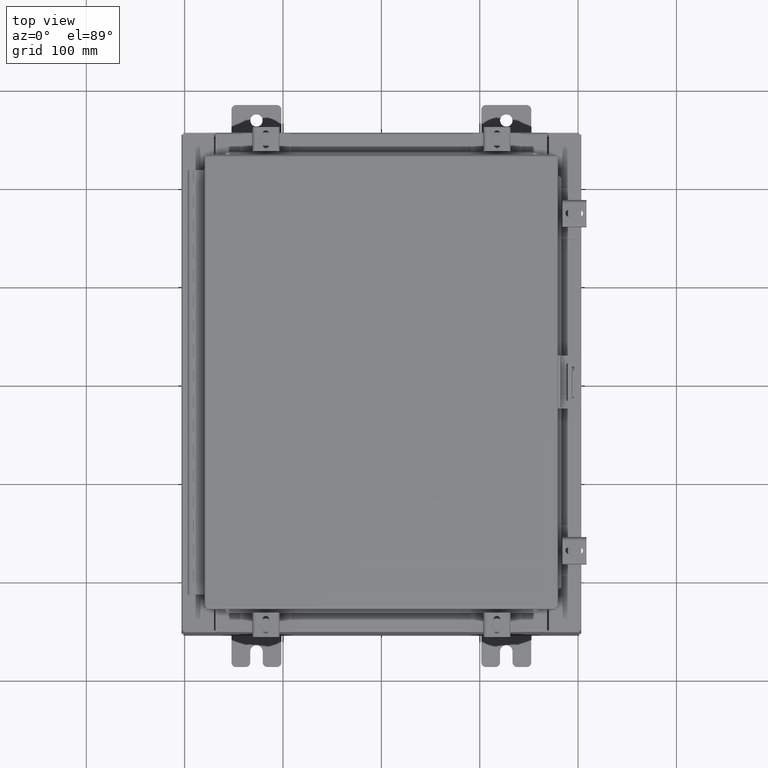
[diagram: clean part render]
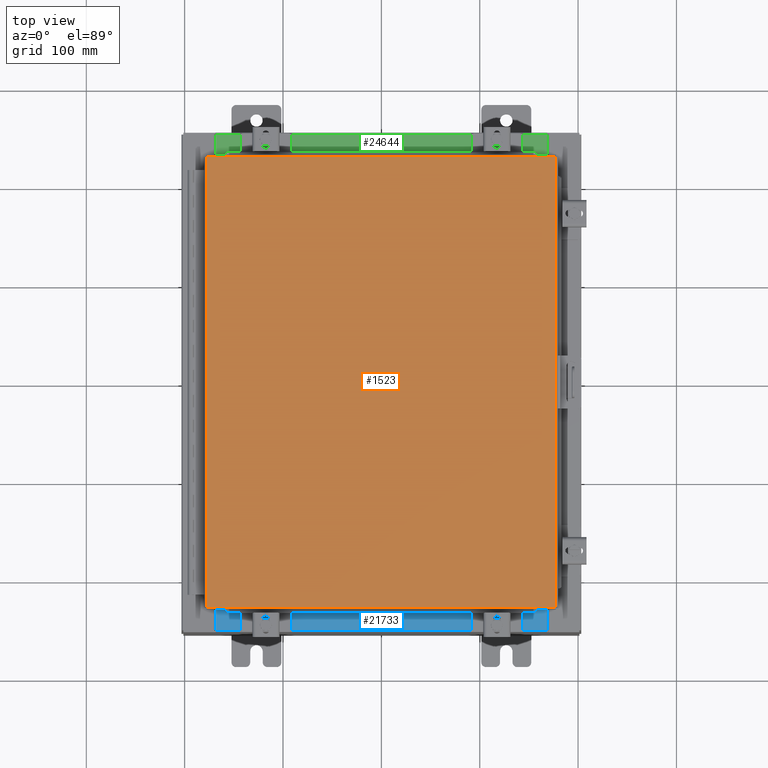
[diagram: same view with three faces highlighted in distinct colors, each labeled with its STEP entity id]
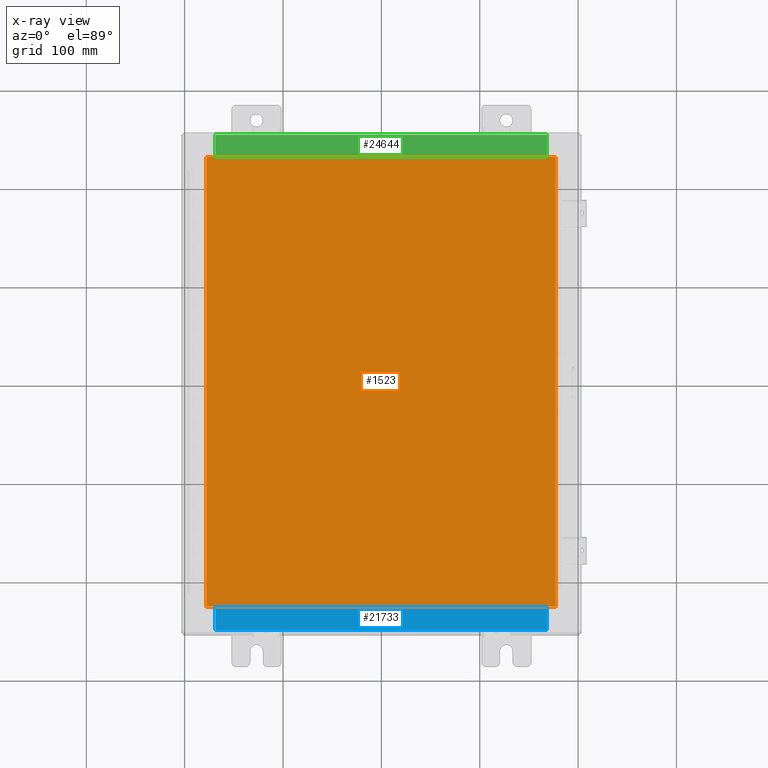
[diagram: x-ray of the same camera — body ghosted, the three highlighted faces saturated]
A machine part, top view with three faces highlighted in distinct colors.
The next image is the same camera in x-ray (body ghosted, the three faces saturated) — at least one of them is partly hidden behind the body in this view.
Their STEP definitions:

[orange] entity #1523 — the highlighted planar face has unit normal (0, 0, -1).
#244 = DIRECTION ( 'NONE',  ( -1.000000000000000000, -0.0000000000000000000, -0.0000000000000000000 ) ) ;
#265 = EDGE_CURVE ( 'NONE', #3115, #21373, #16398, .T. ) ;
#1492 = CARTESIAN_POINT ( 'NONE',  ( -6.990299999999997700, 9.006300000000001300, -2.048885995248197400E-016 ) ) ;
#1523 = ADVANCED_FACE ( 'NONE', ( #20638 ), #20067, .F. ) ;
#3115 = VERTEX_POINT ( 'NONE', #12463 ) ;
#3782 = CARTESIAN_POINT ( 'NONE',  ( 6.990300000000002200, 9.006300000000001300, -7.512581982576723400E-016 ) ) ;
#5084 = EDGE_LOOP ( 'NONE', ( #6978, #21988, #6036, #12754 ) ) ;
#6036 = ORIENTED_EDGE ( 'NONE', *, *, #17402, .T. ) ;
#6474 = DIRECTION ( 'NONE',  ( -1.000000000000000000, 0.0000000000000000000, -0.0000000000000000000 ) ) ;
#6978 = ORIENTED_EDGE ( 'NONE', *, *, #13019, .T. ) ;
#7796 = DIRECTION ( 'NONE',  ( 0.0000000000000000000, 1.000000000000000000, 0.0000000000000000000 ) ) ;
#12382 = AXIS2_PLACEMENT_3D ( 'NONE', #28736, #21407, #6474 ) ;
#12463 = CARTESIAN_POINT ( 'NONE',  ( 6.990300000000002200, -9.006299999999997800, -2.048885995248197400E-016 ) ) ;
#12600 = LINE ( 'NONE', #1492, #24002 ) ;
#12754 = ORIENTED_EDGE ( 'NONE', *, *, #15112, .T. ) ;
#13019 = EDGE_CURVE ( 'NONE', #18039, #3115, #15831, .T. ) ;
#14768 = DIRECTION ( 'NONE',  ( 1.000000000000000000, -0.0000000000000000000, -0.0000000000000000000 ) ) ;
#15112 = EDGE_CURVE ( 'NONE', #22029, #18039, #12600, .T. ) ;
#15831 = LINE ( 'NONE', #28465, #28004 ) ;
#16398 = LINE ( 'NONE', #27307, #27845 ) ;
#17221 = CARTESIAN_POINT ( 'NONE',  ( -6.990299999999997700, 9.006300000000001300, -2.048885995248197400E-016 ) ) ;
#17313 = VECTOR ( 'NONE', #244, 39.37007874015748100 ) ;
#17402 = EDGE_CURVE ( 'NONE', #21373, #22029, #29472, .T. ) ;
#18039 = VERTEX_POINT ( 'NONE', #22875 ) ;
#20067 = PLANE ( 'NONE',  #12382 ) ;
#20638 = FACE_OUTER_BOUND ( 'NONE', #5084, .T. ) ;
#21373 = VERTEX_POINT ( 'NONE', #3782 ) ;
#21407 = DIRECTION ( 'NONE',  ( 0.0000000000000000000, 0.0000000000000000000, -1.000000000000000000 ) ) ;
#21988 = ORIENTED_EDGE ( 'NONE', *, *, #265, .T. ) ;
#22029 = VERTEX_POINT ( 'NONE', #17221 ) ;
#22875 = CARTESIAN_POINT ( 'NONE',  ( -6.990299999999997700, -9.006299999999997800, -2.048885995248197400E-016 ) ) ;
#24002 = VECTOR ( 'NONE', #24150, 39.37007874015748100 ) ;
#24150 = DIRECTION ( 'NONE',  ( 0.0000000000000000000, -1.000000000000000000, 0.0000000000000000000 ) ) ;
#27307 = CARTESIAN_POINT ( 'NONE',  ( 6.990300000000002200, -9.006299999999997800, -2.048885995248197400E-016 ) ) ;
#27594 = CARTESIAN_POINT ( 'NONE',  ( 6.990300000000002200, 9.006300000000001300, -7.512581982576723400E-016 ) ) ;
#27845 = VECTOR ( 'NONE', #7796, 39.37007874015748100 ) ;
#28004 = VECTOR ( 'NONE', #14768, 39.37007874015748100 ) ;
#28465 = CARTESIAN_POINT ( 'NONE',  ( -6.990299999999997700, -9.006299999999997800, -2.048885995248197400E-016 ) ) ;
#28736 = CARTESIAN_POINT ( 'NONE',  ( 0.0000000000000000000, 0.0000000000000000000, 0.0000000000000000000 ) ) ;
#29472 = LINE ( 'NONE', #27594, #17313 ) ;

[blue] entity #21733 — the highlighted planar face has unit normal (-0, -0, 1).
#284 = DIRECTION ( 'NONE',  ( 0.0000000000000000000, 3.566381192773190000E-015, 1.000000000000000000 ) ) ;
#736 = ORIENTED_EDGE ( 'NONE', *, *, #12974, .F. ) ;
#1448 = VERTEX_POINT ( 'NONE', #3191 ) ;
#1824 = DIRECTION ( 'NONE',  ( -1.000000000000000000, 0.0000000000000000000, 0.0000000000000000000 ) ) ;
#2051 = VECTOR ( 'NONE', #15396, 39.37007874015748100 ) ;
#2507 = VERTEX_POINT ( 'NONE', #8444 ) ;
#3174 = VERTEX_POINT ( 'NONE', #20112 ) ;
#3191 = CARTESIAN_POINT ( 'NONE',  ( -6.637200000000000000, -0.08770000000000026400, 3.999999999999999600 ) ) ;
#3535 = VECTOR ( 'NONE', #11460, 39.37007874015748100 ) ;
#4501 = LINE ( 'NONE', #26081, #22657 ) ;
#6234 = EDGE_CURVE ( 'NONE', #15433, #3174, #27027, .T. ) ;
#6460 = ORIENTED_EDGE ( 'NONE', *, *, #29017, .F. ) ;
#6673 = EDGE_CURVE ( 'NONE', #15433, #1448, #28420, .T. ) ;
#8104 = LINE ( 'NONE', #8199, #2051 ) ;
#8199 = CARTESIAN_POINT ( 'NONE',  ( 6.637200000000000900, -1.287299999999999900, 4.000000000000003600 ) ) ;
#8444 = CARTESIAN_POINT ( 'NONE',  ( -6.637200000000000000, -1.287299999999999200, 4.000000000000003600 ) ) ;
#9389 = CARTESIAN_POINT ( 'NONE',  ( 6.637200000000000000, -1.300299999999999800, 4.000000000000003600 ) ) ;
#10678 = FACE_OUTER_BOUND ( 'NONE', #11887, .T. ) ;
#11460 = DIRECTION ( 'NONE',  ( -0.0000000000000000000, -1.000000000000000000, 3.566381192773190000E-015 ) ) ;
#11567 = PLANE ( 'NONE',  #24227 ) ;
#11887 = EDGE_LOOP ( 'NONE', ( #736, #6460, #22376, #29150 ) ) ;
#12421 = DIRECTION ( 'NONE',  ( -0.0000000000000000000, 1.000000000000000000, -3.566381192773190000E-015 ) ) ;
#12974 = EDGE_CURVE ( 'NONE', #2507, #1448, #4501, .T. ) ;
#15396 = DIRECTION ( 'NONE',  ( -1.000000000000000000, 0.0000000000000000000, 0.0000000000000000000 ) ) ;
#15433 = VERTEX_POINT ( 'NONE', #22965 ) ;
#16142 = DIRECTION ( 'NONE',  ( 0.0000000000000000000, -1.000000000000000000, 3.566381192773190000E-015 ) ) ;
#19897 = CARTESIAN_POINT ( 'NONE',  ( 0.0000000000000000000, -0.08770000000000026400, 4.000000000000000000 ) ) ;
#20112 = CARTESIAN_POINT ( 'NONE',  ( 6.637200000000000000, -1.287299999999999900, 4.000000000000003600 ) ) ;
#21733 = ADVANCED_FACE ( 'NONE', ( #10678 ), #11567, .T. ) ;
#22360 = VECTOR ( 'NONE', #1824, 39.37007874015748100 ) ;
#22376 = ORIENTED_EDGE ( 'NONE', *, *, #6234, .F. ) ;
#22657 = VECTOR ( 'NONE', #12421, 39.37007874015748100 ) ;
#22965 = CARTESIAN_POINT ( 'NONE',  ( 6.637199999999999100, -0.08769999999999993100, 3.999999999999999600 ) ) ;
#24227 = AXIS2_PLACEMENT_3D ( 'NONE', #27544, #284, #16142 ) ;
#26081 = CARTESIAN_POINT ( 'NONE',  ( -6.637200000000000000, -0.07469999999999973900, 3.999999999999999600 ) ) ;
#27027 = LINE ( 'NONE', #9389, #3535 ) ;
#27544 = CARTESIAN_POINT ( 'NONE',  ( 0.0000000000000000000, 1.425992975200418200E-014, 3.999999999999999600 ) ) ;
#28420 = LINE ( 'NONE', #19897, #22360 ) ;
#29017 = EDGE_CURVE ( 'NONE', #3174, #2507, #8104, .T. ) ;
#29150 = ORIENTED_EDGE ( 'NONE', *, *, #6673, .T. ) ;

[green] entity #24644 — the highlighted planar face has unit normal (0, 0, 1).
#1390 = VERTEX_POINT ( 'NONE', #6686 ) ;
#1451 = CARTESIAN_POINT ( 'NONE',  ( 0.0000000000000000000, 1.425992975200418200E-014, 3.999999999999999600 ) ) ;
#1581 = CARTESIAN_POINT ( 'NONE',  ( 6.637200000000000900, -1.287299999999999900, 4.000000000000003600 ) ) ;
#1756 = VECTOR ( 'NONE', #6135, 39.37007874015748100 ) ;
#2224 = EDGE_LOOP ( 'NONE', ( #8593, #24801, #15349, #6347 ) ) ;
#3718 = DIRECTION ( 'NONE',  ( 0.0000000000000000000, -1.000000000000000000, 3.566381192773190000E-015 ) ) ;
#4557 = VERTEX_POINT ( 'NONE', #26048 ) ;
#5510 = VERTEX_POINT ( 'NONE', #28986 ) ;
#6135 = DIRECTION ( 'NONE',  ( -1.000000000000000000, 0.0000000000000000000, 0.0000000000000000000 ) ) ;
#6142 = VERTEX_POINT ( 'NONE', #22631 ) ;
#6177 = DIRECTION ( 'NONE',  ( -1.000000000000000000, 0.0000000000000000000, 0.0000000000000000000 ) ) ;
#6347 = ORIENTED_EDGE ( 'NONE', *, *, #26634, .T. ) ;
#6686 = CARTESIAN_POINT ( 'NONE',  ( 6.637199999999999100, -0.08769999999999993100, 3.999999999999999600 ) ) ;
#6744 = EDGE_CURVE ( 'NONE', #5510, #6142, #20208, .T. ) ;
#7328 = AXIS2_PLACEMENT_3D ( 'NONE', #1451, #17310, #3718 ) ;
#8593 = ORIENTED_EDGE ( 'NONE', *, *, #6744, .F. ) ;
#10606 = LINE ( 'NONE', #12687, #11320 ) ;
#11320 = VECTOR ( 'NONE', #26354, 39.37007874015748100 ) ;
#11511 = EDGE_CURVE ( 'NONE', #1390, #4557, #10606, .T. ) ;
#11805 = FACE_OUTER_BOUND ( 'NONE', #2224, .T. ) ;
#12687 = CARTESIAN_POINT ( 'NONE',  ( 6.637200000000000000, -1.300299999999999800, 4.000000000000003600 ) ) ;
#14139 = VECTOR ( 'NONE', #27089, 39.37007874015748100 ) ;
#15349 = ORIENTED_EDGE ( 'NONE', *, *, #11511, .F. ) ;
#17310 = DIRECTION ( 'NONE',  ( 0.0000000000000000000, 3.566381192773190000E-015, 1.000000000000000000 ) ) ;
#17678 = VECTOR ( 'NONE', #6177, 39.37007874015748100 ) ;
#18481 = LINE ( 'NONE', #19722, #1756 ) ;
#19722 = CARTESIAN_POINT ( 'NONE',  ( 0.0000000000000000000, -0.08770000000000026400, 4.000000000000000000 ) ) ;
#20185 = CARTESIAN_POINT ( 'NONE',  ( -6.637200000000000000, -0.07469999999999973900, 3.999999999999999600 ) ) ;
#20208 = LINE ( 'NONE', #20185, #14139 ) ;
#22631 = CARTESIAN_POINT ( 'NONE',  ( -6.637200000000000000, -0.08770000000000026400, 3.999999999999999600 ) ) ;
#24107 = PLANE ( 'NONE',  #7328 ) ;
#24644 = ADVANCED_FACE ( 'NONE', ( #11805 ), #24107, .T. ) ;
#24801 = ORIENTED_EDGE ( 'NONE', *, *, #28880, .F. ) ;
#25208 = LINE ( 'NONE', #1581, #17678 ) ;
#26048 = CARTESIAN_POINT ( 'NONE',  ( 6.637200000000000000, -1.287299999999999900, 4.000000000000003600 ) ) ;
#26354 = DIRECTION ( 'NONE',  ( -0.0000000000000000000, -1.000000000000000000, 3.566381192773190000E-015 ) ) ;
#26634 = EDGE_CURVE ( 'NONE', #1390, #6142, #18481, .T. ) ;
#27089 = DIRECTION ( 'NONE',  ( -0.0000000000000000000, 1.000000000000000000, -3.566381192773190000E-015 ) ) ;
#28880 = EDGE_CURVE ( 'NONE', #4557, #5510, #25208, .T. ) ;
#28986 = CARTESIAN_POINT ( 'NONE',  ( -6.637200000000000000, -1.287299999999999200, 4.000000000000003600 ) ) ;